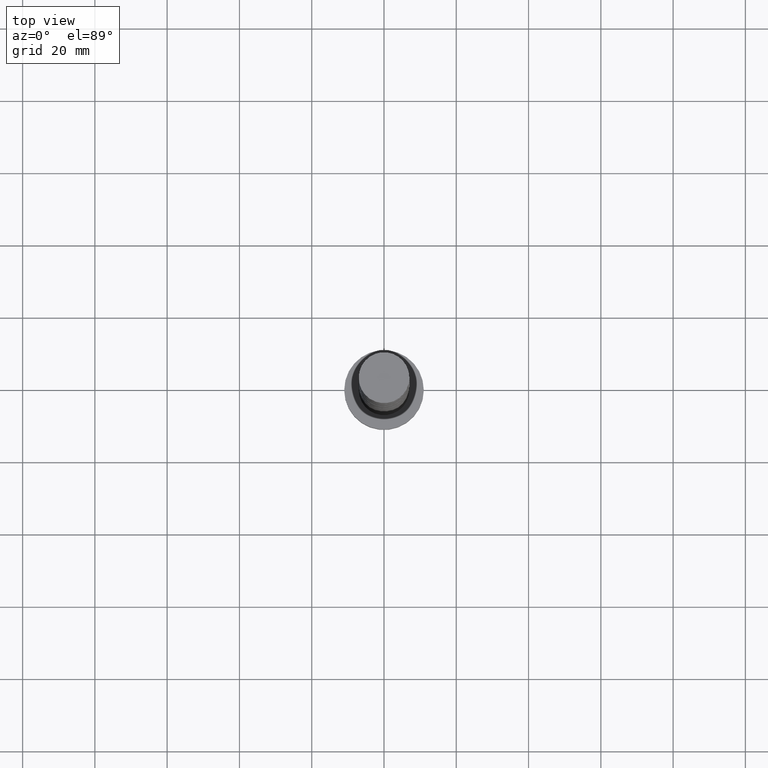
[diagram: clean part render]
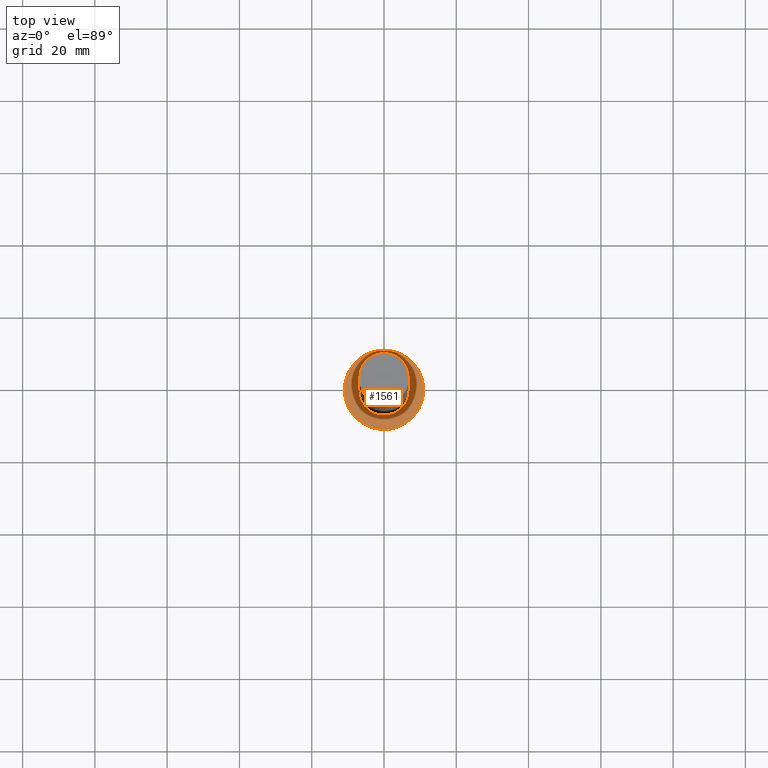
[diagram: same view with one face highlighted and labeled with its STEP entity id]
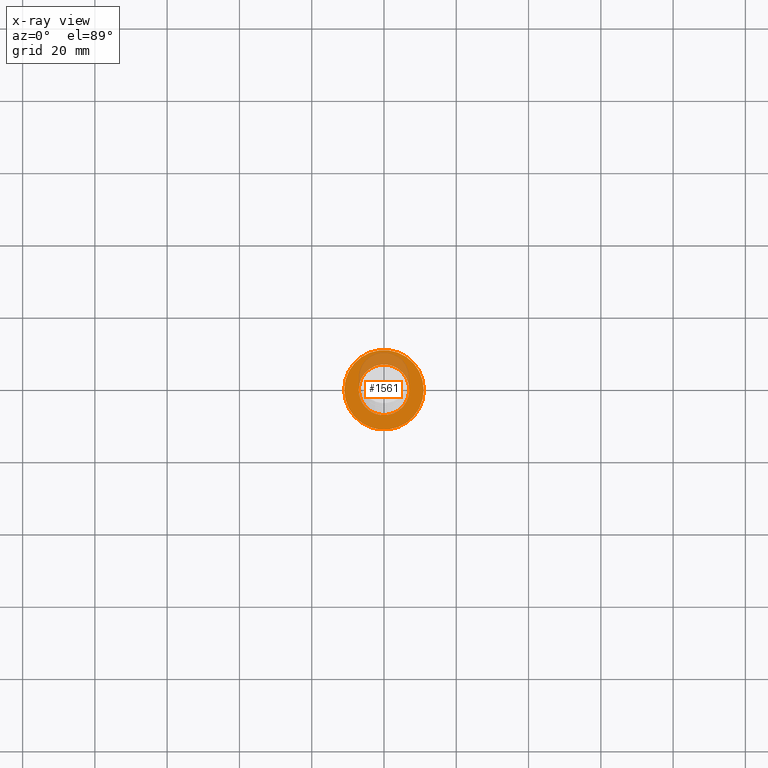
[diagram: x-ray of the same camera — body ghosted, the highlighted face saturated]
A machine part, top view. The second image highlights one B-rep face of the part: STEP entity #1561.
The next image is the same camera in x-ray: the body ghosted, the highlighted face saturated — about 21% of this face is hidden behind the body in this view.
In plain terms, the highlighted planar face has unit normal (0, 0, 1).
Its self-contained STEP definition (entity closure, byte-faithful):
#31 = AXIS2_PLACEMENT_3D ( 'NONE', #1274, #731, #1257 ) ;
#39 = DIRECTION ( 'NONE',  ( 0.000000000000000000, 0.000000000000000000, 1.000000000000000000 ) ) ;
#72 = CARTESIAN_POINT ( 'NONE',  ( 7.000000000000000000, 8.572527594031473190E-16, 7.000000000000000000 ) ) ;
#108 = EDGE_CURVE ( 'NONE', #1419, #650, #988, .T. ) ;
#122 = CARTESIAN_POINT ( 'NONE',  ( 11.00000000000000000, 1.347111479062088405E-15, 7.000000000000000000 ) ) ;
#169 = AXIS2_PLACEMENT_3D ( 'NONE', #871, #451, #467 ) ;
#199 = FACE_OUTER_BOUND ( 'NONE', #1691, .T. ) ;
#215 = AXIS2_PLACEMENT_3D ( 'NONE', #849, #39, #578 ) ;
#320 = ORIENTED_EDGE ( 'NONE', *, *, #108, .T. ) ;
#338 = CIRCLE ( 'NONE', #31, 11.00000000000000000 ) ;
#346 = EDGE_CURVE ( 'NONE', #944, #1152, #366, .T. ) ;
#366 = CIRCLE ( 'NONE', #1365, 7.000000000000000000 ) ;
#393 = CARTESIAN_POINT ( 'NONE',  ( -11.00000000000000000, 0.000000000000000000, 7.000000000000000000 ) ) ;
#451 = DIRECTION ( 'NONE',  ( 0.000000000000000000, 0.000000000000000000, 1.000000000000000000 ) ) ;
#467 = DIRECTION ( 'NONE',  ( 1.000000000000000000, 0.000000000000000000, -0.000000000000000000 ) ) ;
#501 = CARTESIAN_POINT ( 'NONE',  ( -7.000000000000000000, 0.000000000000000000, 7.000000000000000000 ) ) ;
#542 = ORIENTED_EDGE ( 'NONE', *, *, #346, .F. ) ;
#578 = DIRECTION ( 'NONE',  ( 1.000000000000000000, 0.000000000000000000, 0.000000000000000000 ) ) ;
#650 = VERTEX_POINT ( 'NONE', #122 ) ;
#731 = DIRECTION ( 'NONE',  ( 0.000000000000000000, 0.000000000000000000, 1.000000000000000000 ) ) ;
#818 = DIRECTION ( 'NONE',  ( 1.000000000000000000, 0.000000000000000000, 0.000000000000000000 ) ) ;
#842 = ORIENTED_EDGE ( 'NONE', *, *, #1375, .F. ) ;
#849 = CARTESIAN_POINT ( 'NONE',  ( 0.000000000000000000, 0.000000000000000000, 7.000000000000000000 ) ) ;
#871 = CARTESIAN_POINT ( 'NONE',  ( 0.000000000000000000, 0.000000000000000000, 7.000000000000000000 ) ) ;
#926 = EDGE_CURVE ( 'NONE', #650, #1419, #338, .T. ) ;
#944 = VERTEX_POINT ( 'NONE', #72 ) ;
#948 = CARTESIAN_POINT ( 'NONE',  ( 0.000000000000000000, 0.000000000000000000, 7.000000000000000000 ) ) ;
#988 = CIRCLE ( 'NONE', #215, 11.00000000000000000 ) ;
#1024 = CARTESIAN_POINT ( 'NONE',  ( 0.000000000000000000, 0.000000000000000000, 7.000000000000000000 ) ) ;
#1110 = CIRCLE ( 'NONE', #1592, 7.000000000000000000 ) ;
#1148 = FACE_BOUND ( 'NONE', #1437, .T. ) ;
#1152 = VERTEX_POINT ( 'NONE', #501 ) ;
#1184 = DIRECTION ( 'NONE',  ( 0.000000000000000000, 0.000000000000000000, 1.000000000000000000 ) ) ;
#1257 = DIRECTION ( 'NONE',  ( 1.000000000000000000, 0.000000000000000000, 0.000000000000000000 ) ) ;
#1271 = PLANE ( 'NONE',  #169 ) ;
#1274 = CARTESIAN_POINT ( 'NONE',  ( 0.000000000000000000, 0.000000000000000000, 7.000000000000000000 ) ) ;
#1339 = DIRECTION ( 'NONE',  ( 0.000000000000000000, 0.000000000000000000, 1.000000000000000000 ) ) ;
#1365 = AXIS2_PLACEMENT_3D ( 'NONE', #1024, #1184, #1458 ) ;
#1375 = EDGE_CURVE ( 'NONE', #1152, #944, #1110, .T. ) ;
#1419 = VERTEX_POINT ( 'NONE', #393 ) ;
#1437 = EDGE_LOOP ( 'NONE', ( #842, #542 ) ) ;
#1458 = DIRECTION ( 'NONE',  ( 1.000000000000000000, 0.000000000000000000, 0.000000000000000000 ) ) ;
#1561 = ADVANCED_FACE ( 'NONE', ( #1148, #199 ), #1271, .T. ) ;
#1592 = AXIS2_PLACEMENT_3D ( 'NONE', #948, #1339, #818 ) ;
#1643 = ORIENTED_EDGE ( 'NONE', *, *, #926, .T. ) ;
#1691 = EDGE_LOOP ( 'NONE', ( #320, #1643 ) ) ;